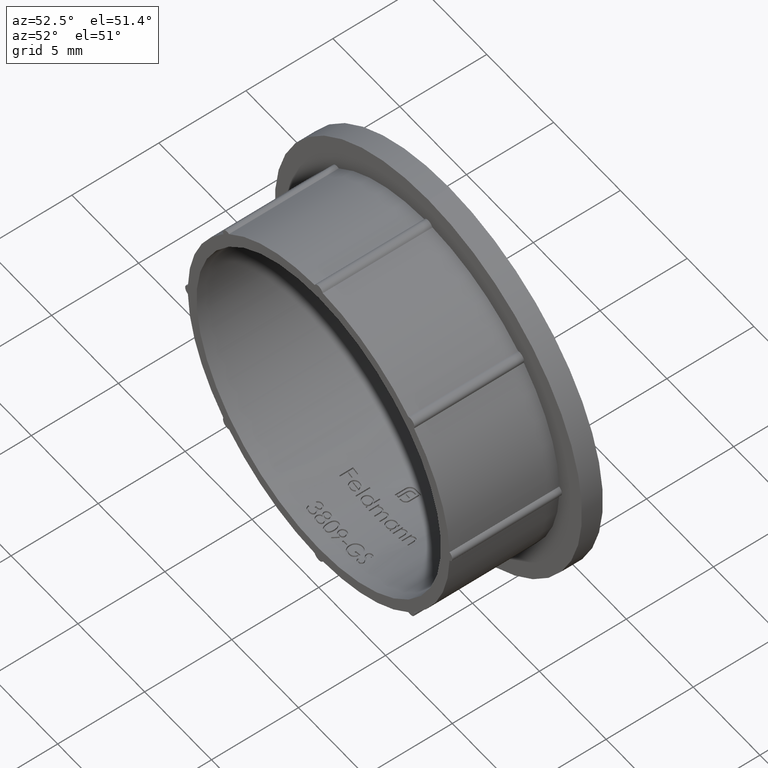
[diagram: clean part render]
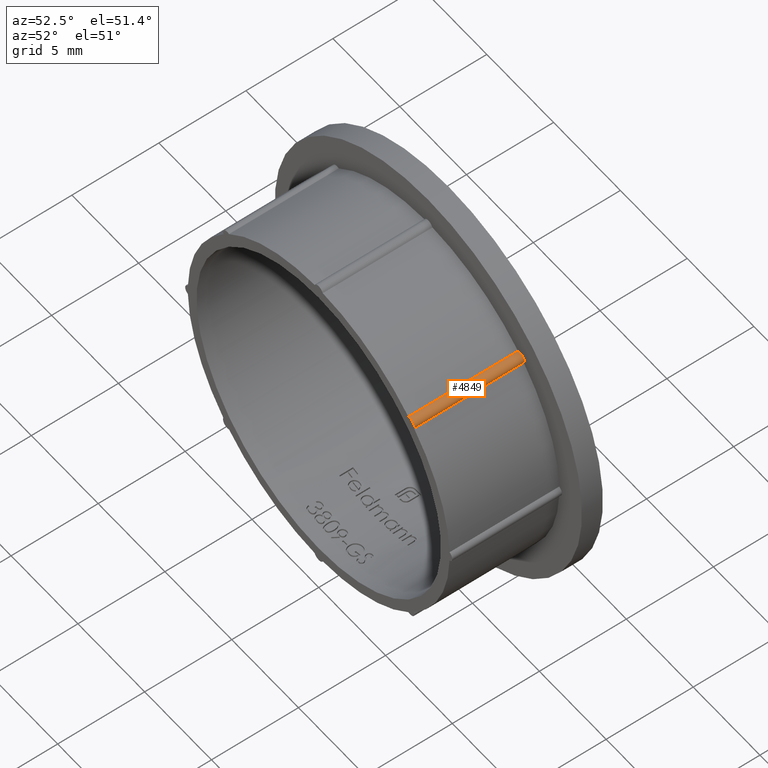
[diagram: same view with one face highlighted and labeled with its STEP entity id]
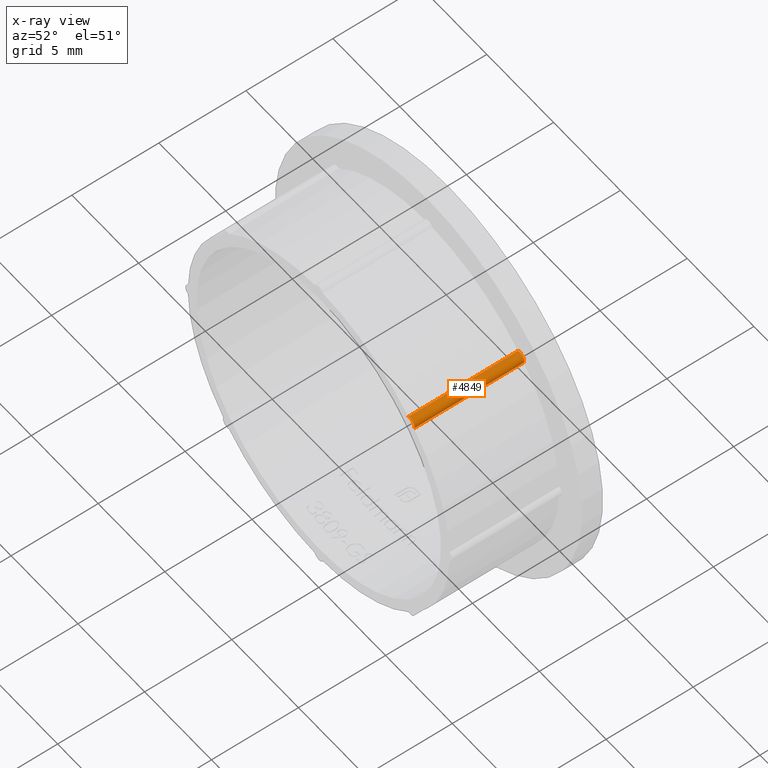
[diagram: x-ray of the same camera — body ghosted, the highlighted face saturated]
A machine part, auxiliary view. The second image highlights one B-rep face of the part: STEP entity #4849.
The next image is the same camera in x-ray: the body ghosted, the highlighted face saturated — about 0% of this face is hidden behind the body in this view.
In plain terms, the highlighted cylindrical surface (edge-blend (fillet) strip) has radius 0.325 mm, axis along (0, -1, 0).
Its self-contained STEP definition (entity closure, byte-faithful):
#400 = EDGE_CURVE ( 'NONE', #13678, #1358, #12807, .T. ) ;
#469 = ORIENTED_EDGE ( 'NONE', *, *, #400, .F. ) ;
#580 = CARTESIAN_POINT ( 'NONE',  ( 7.139830251852558263, 6.299999999999998934, 6.712884921904372248 ) ) ;
#755 = AXIS2_PLACEMENT_3D ( 'NONE', #5947, #6041, #7125 ) ;
#938 = ORIENTED_EDGE ( 'NONE', *, *, #7051, .F. ) ;
#1074 = CARTESIAN_POINT ( 'NONE',  ( 6.712884921904196389, 1.200763985293232679E-18, 7.139830251852722576 ) ) ;
#1358 = VERTEX_POINT ( 'NONE', #3942 ) ;
#1997 = CARTESIAN_POINT ( 'NONE',  ( 6.712884921904183955, 6.299999999999998934, 7.139830251852737675 ) ) ;
#2623 = CIRCLE ( 'NONE', #755, 0.3249999999999998446 ) ;
#3091 = ORIENTED_EDGE ( 'NONE', *, *, #6240, .T. ) ;
#3656 = VERTEX_POINT ( 'NONE', #1997 ) ;
#3827 = DIRECTION ( 'NONE',  ( 0.000000000000000000, 0.000000000000000000, -1.000000000000000000 ) ) ;
#3925 = DIRECTION ( 'NONE',  ( 0.000000000000000000, 1.000000000000000000, 0.000000000000000000 ) ) ;
#3942 = CARTESIAN_POINT ( 'NONE',  ( 7.139830251852558263, 1.200763985293232679E-18, 6.712884921904372248 ) ) ;
#4099 = CARTESIAN_POINT ( 'NONE',  ( 6.841258107979763636, 7.501999999999998003, 6.841258107979929726 ) ) ;
#4381 = VECTOR ( 'NONE', #7774, 1000.000000000000000 ) ;
#4564 = CYLINDRICAL_SURFACE ( 'NONE', #9214, 0.3249999999999997891 ) ;
#4849 = ADVANCED_FACE ( 'NONE', ( #13887 ), #4564, .T. ) ;
#5947 = CARTESIAN_POINT ( 'NONE',  ( 6.841258107979763636, 0.000000000000000000, 6.841258107979929726 ) ) ;
#6041 = DIRECTION ( 'NONE',  ( 0.000000000000000000, -1.000000000000000000, 0.000000000000000000 ) ) ;
#6240 = EDGE_CURVE ( 'NONE', #3656, #11943, #11546, .T. ) ;
#6659 = VECTOR ( 'NONE', #12590, 1000.000000000000000 ) ;
#7051 = EDGE_CURVE ( 'NONE', #1358, #11943, #2623, .T. ) ;
#7125 = DIRECTION ( 'NONE',  ( -0.7071067811865394681, 0.000000000000000000, -0.7071067811865555663 ) ) ;
#7439 = EDGE_CURVE ( 'NONE', #3656, #13678, #12808, .T. ) ;
#7774 = DIRECTION ( 'NONE',  ( 0.000000000000000000, -1.000000000000000000, 0.000000000000000000 ) ) ;
#9214 = AXIS2_PLACEMENT_3D ( 'NONE', #4099, #11195, #12147 ) ;
#10339 = ORIENTED_EDGE ( 'NONE', *, *, #7439, .F. ) ;
#10530 = CARTESIAN_POINT ( 'NONE',  ( 6.841258107979763636, 6.299999999999998934, 6.841258107979929726 ) ) ;
#10753 = AXIS2_PLACEMENT_3D ( 'NONE', #10530, #3925, #3827 ) ;
#11195 = DIRECTION ( 'NONE',  ( 0.000000000000000000, -1.000000000000000000, 0.000000000000000000 ) ) ;
#11546 = LINE ( 'NONE', #13341, #4381 ) ;
#11554 = CARTESIAN_POINT ( 'NONE',  ( 7.139830251852575138, 7.501999999999998003, 6.712884921904357149 ) ) ;
#11943 = VERTEX_POINT ( 'NONE', #1074 ) ;
#12147 = DIRECTION ( 'NONE',  ( 0.000000000000000000, 0.000000000000000000, -1.000000000000000000 ) ) ;
#12590 = DIRECTION ( 'NONE',  ( 0.000000000000000000, -1.000000000000000000, 0.000000000000000000 ) ) ;
#12807 = LINE ( 'NONE', #11554, #6659 ) ;
#12808 = CIRCLE ( 'NONE', #10753, 0.3249999999999997891 ) ;
#12867 = EDGE_LOOP ( 'NONE', ( #10339, #3091, #938, #469 ) ) ;
#13341 = CARTESIAN_POINT ( 'NONE',  ( 6.712884921904183955, 7.501999999999998003, 7.139830251852737675 ) ) ;
#13678 = VERTEX_POINT ( 'NONE', #580 ) ;
#13887 = FACE_OUTER_BOUND ( 'NONE', #12867, .T. ) ;